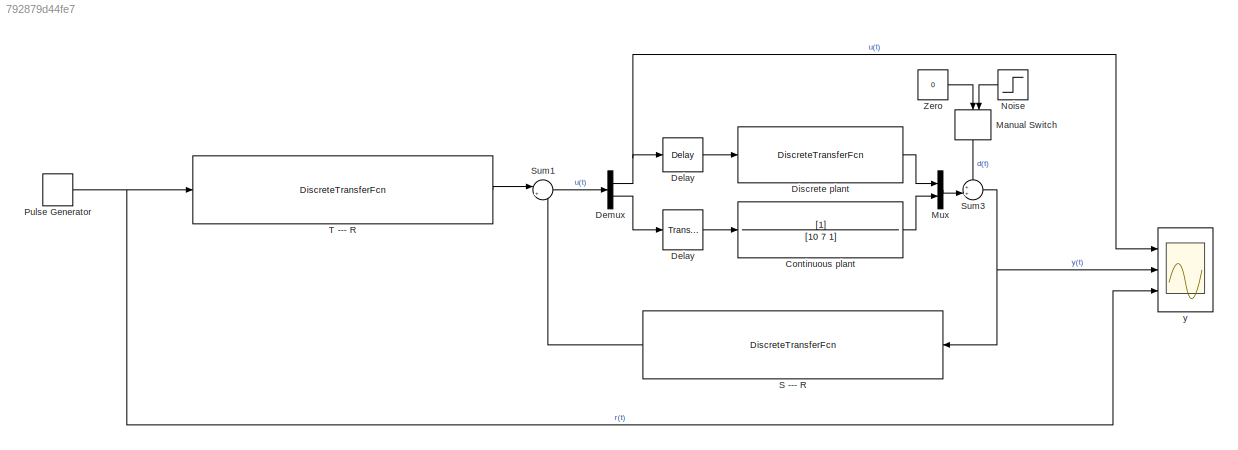
MODEL slx_792879d44fe7
KIND model
CONFIG AbsTol = auto
CONFIG EnableMultiTasking = off
CONFIG FixedStep = 0.0001
CONFIG MaxStep = auto
CONFIG MinStep = auto
CONFIG RelTol = 1e-3
CONFIG SampleTimeConstraint = Unconstrained
CONFIG SolverName = FixedStepAuto
CONFIG StartTime = 0.0
CONFIG StopTime = 75
BLOCK [TransferFcn] Continuous plant
  Denominator = [10 7 1]
BLOCK [TransportDelay] Delay
  BufferSize = 128000
  DelayTime = 2
  Ports = [1, 1]
BLOCK [Delay] Delay 
  InputPortMap = u0
  Ports = [1, 1]
  SampleTime = Ts
BLOCK [Demux] Demux
  Outputs = 2
  Ports = [1, 2]
BLOCK [DiscreteTransferFcn] Discrete plant
  Denominator = [1 -1.425 0.4966]
  InputPortMap = u0
  Numerator = [0.0398 0.03152]
  Ports = [1, 1]
  SampleTime = Ts
BLOCK [ManualSwitch] Manual Switch
  NameLocation = left
BLOCK [Mux] Mux
  DisplayOption = bar
  Inputs = 2
  Ports = [2, 1]
BLOCK [Step] Noise
  NameLocation = top
  SampleTime = 0
  Time = 30
BLOCK [DiscretePulseGenerator] Pulse Generator
  Period = 20 * Tn
  PhaseDelay = 1
  Ports = [0, 1]
  PulseType = Time based
  PulseWidth = 50
BLOCK [DiscreteTransferFcn] S --- R
  Denominator = [0.0398 -0.0049 -0.0008 -0.0189 -0.0152]
  InputPortMap = u0
  Numerator = [0.5091 -0.6900 0.2391 0 0]
  Ports = [1, 1]
  SampleTime = Ts
BLOCK [Sum] Sum1
  Inputs = |+-
  Ports = [2, 1]
BLOCK [Sum] Sum3
  Inputs = ++|
  Ports = [2, 1]
BLOCK [DiscreteTransferFcn] T --- R
  Denominator = [0.0398 -0.0049 -0.0008 -0.0189 -0.0152]
  InputPortMap = u0
  Numerator = [0.0624 0.0541 0 0 0]
  Ports = [1, 1]
  SampleTime = Ts
BLOCK [Constant] Zero
  OutDataTypeStr = Inherit: Inherit via back propagation
  Value = 0
BLOCK [Scope] y
  Floating = off
  NumInputPorts = 3
  Ports = [3]
  ScopeSpecificationString = Simulink.scopes.TimeScopeBlockCfg('CurrentConfiguration', extmgr.ConfigurationSet(extmgr.Configuration('Core','General UI',true,'FigureColor',[0 0 0]),extmgr.Configuration('Core','Source UI',true),extmgr.Configuration('Sources','WiredSimulink',true),extmgr.Configuration('Visuals','Time Domain',true,'PlotType','Line','SerializedDisplays',{struct('MinYLimReal','-1.9239','MaxYLimReal','3.93348','YLab...<+2090ch>
LINE Continuous plant:1 -> Mux:2
LINE Delay :1 -> Discrete plant:1
LINE Delay:1 -> Continuous plant:1
NET Demux:1 -> Delay :1, y:1
LINE Demux:2 -> Delay:1
LINE Discrete plant:1 -> Mux:1
LINE Manual Switch:1 -> Sum3:1
LINE Mux:1 -> Sum3:2
LINE Noise:1 -> Manual Switch:2
NET Pulse Generator:1 -> T --- R:1, y:3
LINE S --- R:1 -> Sum1:2
LINE Sum1:1 -> Demux:1
NET Sum3:1 -> S --- R:1, y:2
LINE T --- R:1 -> Sum1:1
LINE Zero:1 -> Manual Switch:1
note: NET lines group one-source signal fan-out (src -> all destinations, sorted); 1:1 wires keep LINE
